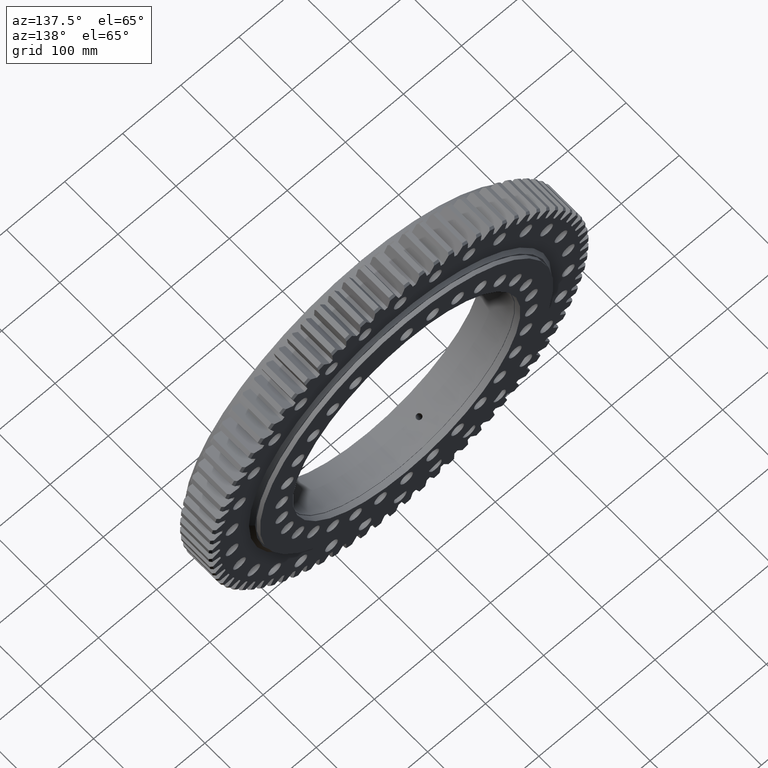
[diagram: clean part render]
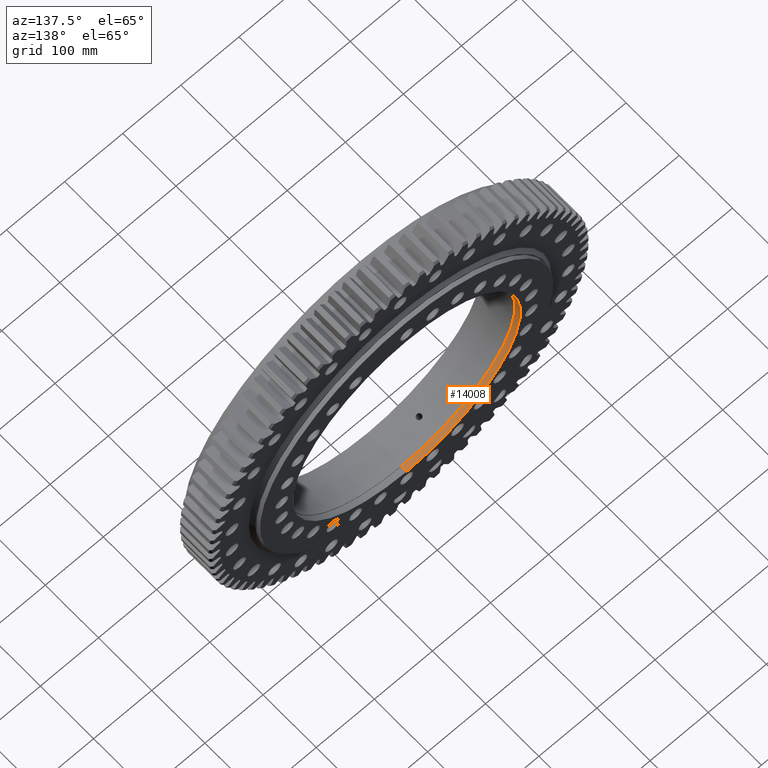
[diagram: same view with one face highlighted and labeled with its STEP entity id]
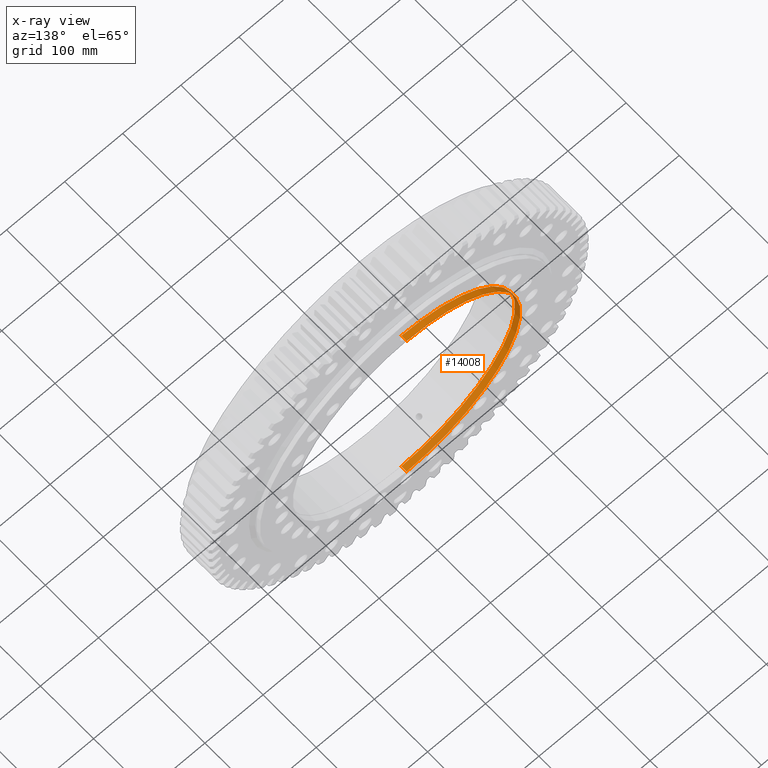
[diagram: x-ray of the same camera — body ghosted, the highlighted face saturated]
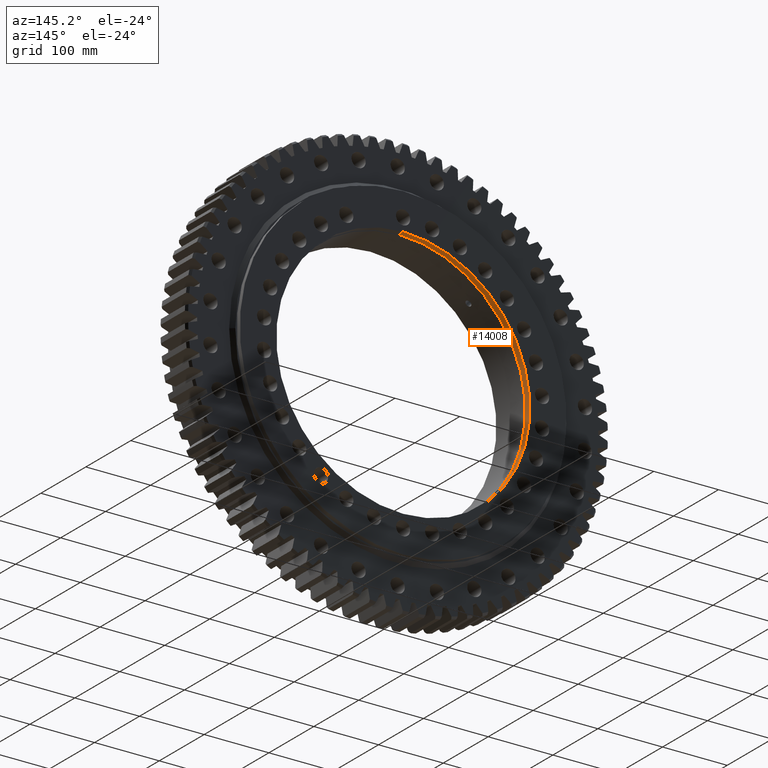
[diagram: same view with one face highlighted and labeled with its STEP entity id]
A machine part, auxiliary view. The second image highlights one B-rep face of the part: STEP entity #14008.
The next image is the same camera in x-ray: the body ghosted, the highlighted face saturated — about 0% of this face is hidden behind the body in this view.
A second angle (auxiliary view) of the same face is appended — the face is thin or edge-on in the first view.
In plain terms, the highlighted cylindrical surface (partial cylindrical patch) has radius 196 mm, axis along (-0, 1, -0).
Its self-contained STEP definition (entity closure, byte-faithful):
#455 = ORIENTED_EDGE ( 'NONE', *, *, #12964, .F. ) ;
#494 = DIRECTION ( 'NONE',  ( 0.0000000000000000000, 0.0000000000000000000, 1.000000000000000000 ) ) ;
#969 = VECTOR ( 'NONE', #4944, 1000.000000000000000 ) ;
#2145 = AXIS2_PLACEMENT_3D ( 'NONE', #3776, #16592, #5602 ) ;
#2410 = CARTESIAN_POINT ( 'NONE',  ( 2.400307726328812400E-014, 42.49999999999997900, -196.0000000000000000 ) ) ;
#3037 = EDGE_CURVE ( 'NONE', #20845, #5108, #7656, .T. ) ;
#3746 = ORIENTED_EDGE ( 'NONE', *, *, #5149, .F. ) ;
#3776 = CARTESIAN_POINT ( 'NONE',  ( 0.0000000000000000000, 42.49999999999998600, 0.0000000000000000000 ) ) ;
#4360 = AXIS2_PLACEMENT_3D ( 'NONE', #22455, #11448, #494 ) ;
#4944 = DIRECTION ( 'NONE',  ( -0.0000000000000000000, 1.000000000000000000, -0.0000000000000000000 ) ) ;
#5108 = VERTEX_POINT ( 'NONE', #2410 ) ;
#5149 = EDGE_CURVE ( 'NONE', #14658, #20845, #8458, .T. ) ;
#5492 = FACE_OUTER_BOUND ( 'NONE', #5997, .T. ) ;
#5602 = DIRECTION ( 'NONE',  ( 0.0000000000000000000, -3.540251991789402200E-017, -1.000000000000000000 ) ) ;
#5997 = EDGE_LOOP ( 'NONE', ( #455, #6423, #16829, #3746 ) ) ;
#6423 = ORIENTED_EDGE ( 'NONE', *, *, #20531, .T. ) ;
#6968 = LINE ( 'NONE', #15937, #969 ) ;
#6977 = CARTESIAN_POINT ( 'NONE',  ( 0.0000000000000000000, 70.62343277129268400, 0.0000000000000000000 ) ) ;
#7656 = CIRCLE ( 'NONE', #2145, 196.0000000000000000 ) ;
#8458 = LINE ( 'NONE', #22768, #12783 ) ;
#9793 = CYLINDRICAL_SURFACE ( 'NONE', #18985, 196.0000000000000000 ) ;
#11345 = CARTESIAN_POINT ( 'NONE',  ( 0.0000000000000000000, 42.49999999999998600, 196.0000000000000000 ) ) ;
#11448 = DIRECTION ( 'NONE',  ( -0.0000000000000000000, 1.000000000000000000, -0.0000000000000000000 ) ) ;
#11472 = CIRCLE ( 'NONE', #4360, 196.0000000000000000 ) ;
#11588 = CARTESIAN_POINT ( 'NONE',  ( 2.400307726328812400E-014, 32.49999999999995000, -196.0000000000000000 ) ) ;
#12450 = DIRECTION ( 'NONE',  ( 0.0000000000000000000, 0.0000000000000000000, 1.000000000000000000 ) ) ;
#12783 = VECTOR ( 'NONE', #19166, 1000.000000000000000 ) ;
#12964 = EDGE_CURVE ( 'NONE', #20926, #14658, #11472, .T. ) ;
#14008 = ADVANCED_FACE ( 'NONE', ( #5492 ), #9793, .F. ) ;
#14658 = VERTEX_POINT ( 'NONE', #16648 ) ;
#15937 = CARTESIAN_POINT ( 'NONE',  ( 2.400307726328812400E-014, 70.62343277129268400, -196.0000000000000000 ) ) ;
#16134 = DIRECTION ( 'NONE',  ( -0.0000000000000000000, 1.000000000000000000, -0.0000000000000000000 ) ) ;
#16592 = DIRECTION ( 'NONE',  ( 0.0000000000000000000, -1.000000000000000000, 2.727064569436389700E-017 ) ) ;
#16648 = CARTESIAN_POINT ( 'NONE',  ( 0.0000000000000000000, 32.49999999999995000, 196.0000000000000000 ) ) ;
#16829 = ORIENTED_EDGE ( 'NONE', *, *, #3037, .F. ) ;
#18985 = AXIS2_PLACEMENT_3D ( 'NONE', #6977, #16134, #12450 ) ;
#19166 = DIRECTION ( 'NONE',  ( -0.0000000000000000000, 1.000000000000000000, -0.0000000000000000000 ) ) ;
#20531 = EDGE_CURVE ( 'NONE', #20926, #5108, #6968, .T. ) ;
#20845 = VERTEX_POINT ( 'NONE', #11345 ) ;
#20926 = VERTEX_POINT ( 'NONE', #11588 ) ;
#22455 = CARTESIAN_POINT ( 'NONE',  ( 0.0000000000000000000, 32.49999999999995000, 0.0000000000000000000 ) ) ;
#22768 = CARTESIAN_POINT ( 'NONE',  ( 0.0000000000000000000, 70.62343277129268400, 196.0000000000000000 ) ) ;